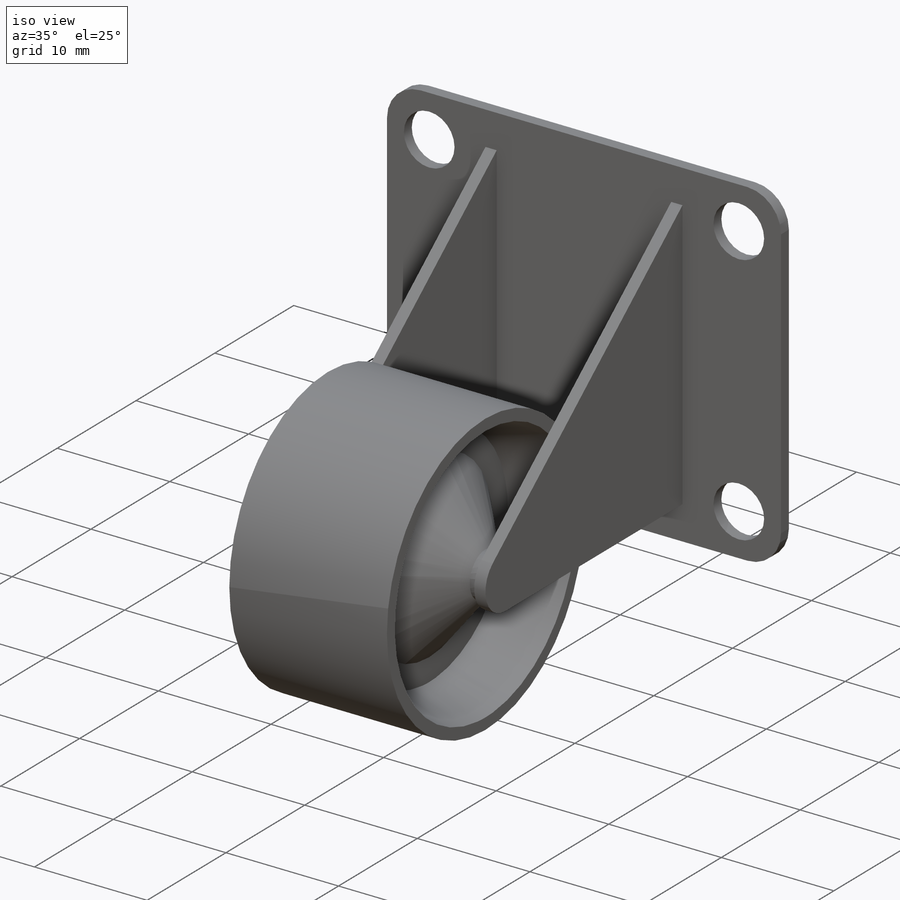
[diagram: iso view]
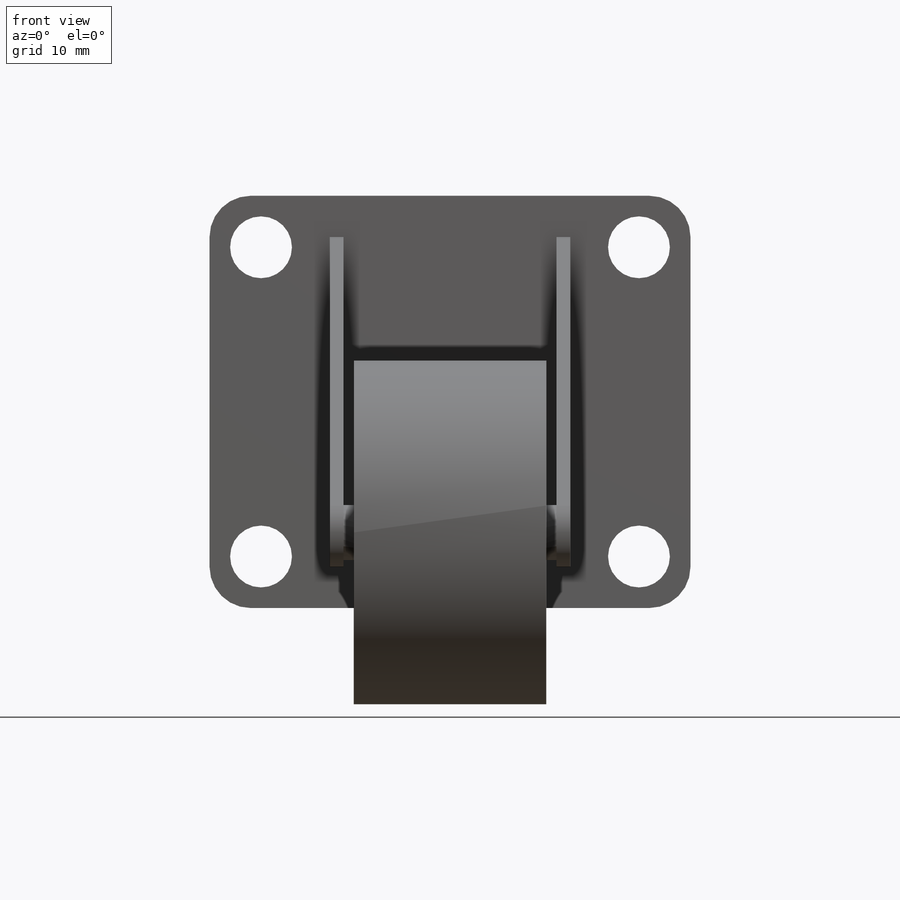
[diagram: front view]
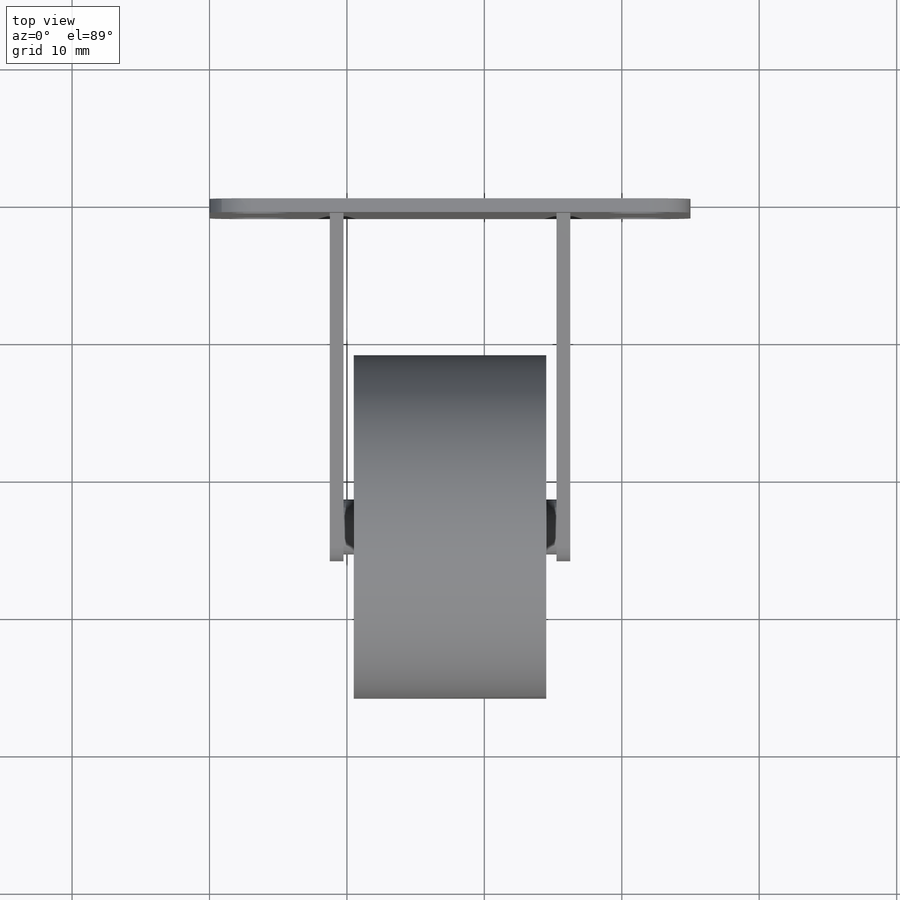
[diagram: top view]
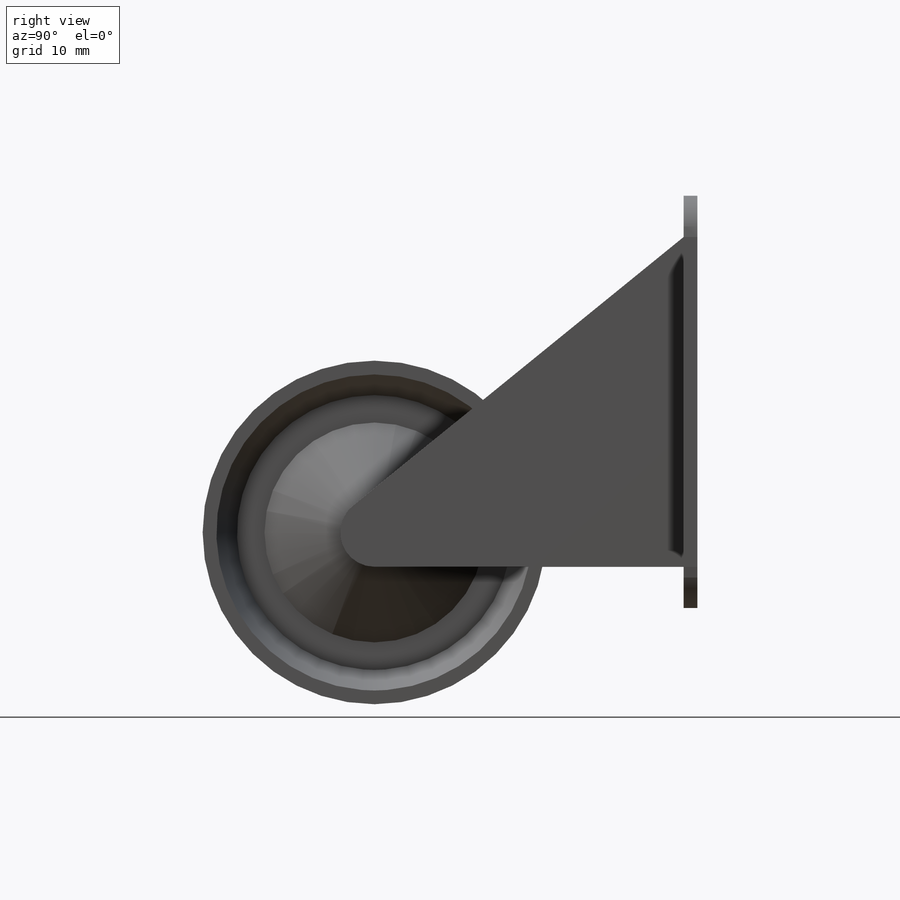
[diagram: right view]
SOLIDWORKS PART (.sldprt)
format: sldprt  version: not decoded by parser v0  size: 359,936 bytes
history: native  units: mm
features: sketch x7, plane x5, extrude x4, cut_extrude x2, material x1, fillet x1, cut_revolve x1 + 2 further entries (+8 scaffold rows collapsed)
feature tree (31):
  scaffold x8  (default folders/planes/origin — collapsed)
  material  "材料 <指定なし>"
  "ｻｰﾌｪｽ ﾎﾞﾃﾞｨ"
  "ｿﾘｯﾄﾞ ﾎﾞﾃﾞｨ"
  plane  "正面"
  plane  "平面"
  plane  "右側面"
  sketch  "ｽｹｯﾁ1"  dims[D1=30.0mm D2=35.0mm]
  extrude  "ﾎﾞｽ - 押し出し1"  Depth=1mm
  fillet  "ﾌｨﾚｯﾄ1"  Radius=3mm
  sketch  "ｽｹｯﾁ2"  dims[D2=4.5mm D3=4.5mm D4=4.5mm D5=4.5mm D1=27.5mm D6=22.5mm]
  cut_extrude  "ｶｯﾄ - 押し出し1"  [1 undecoded]
  sketch  "ｽｹｯﾁ3"  dims[D1=25.0mm D2=25.0mm D3=1.0mm D4=1.0mm D5=17.5mm]
  extrude  "ﾎﾞｽ - 押し出し2"  [1 undecoded]
  sketch  "ｽｹｯﾁ4"  dims[D1=22.5mm D2=3.0mm D3=3.0mm]
  cut_extrude  "ｶｯﾄ - 押し出し2"  [1 undecoded]
  sketch  "ｽｹｯﾁ5"  dims[D1=4.0mm]
  extrude  "ﾎﾞｽ - 押し出し3"  [1 undecoded]
  plane  "平面1"  Offset=23.5mm
  plane  "平面2"
  sketch  "ｽｹｯﾁ6"  dims[D1=25.0mm]
  extrude  "ﾎﾞｽ - 押し出し4"  Depth=14mm
  sketch  "ｽｹｯﾁ7"  dims[D1=1.0mm D2=1.0mm D3=5.0mm D4=5.0mm D5=2.0mm D6=2.0mm D7=2.0mm D8=16.0mm D9=16.0mm]
  cut_revolve  "ｶｯﾄ - 回転1"  Angle=360deg
decode coverage: 11 of 15 modeling features carry decoded parameters; 2 rows unclassified (native names shown)
note: 4 parameter values undecoded
summary: no parameter record found for 4 features
note: suppression state not decoded; provenance and decode notes live in map.json
